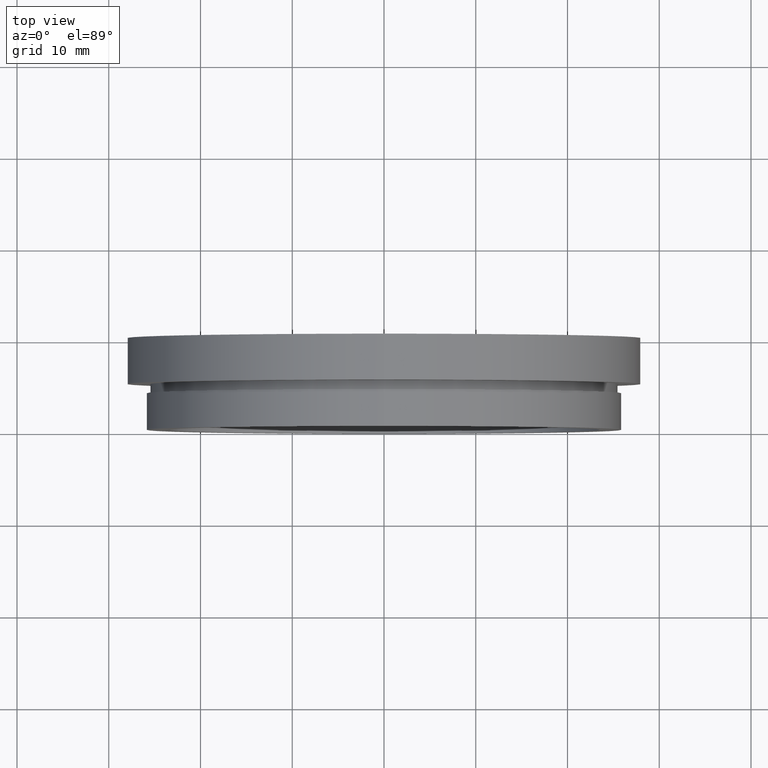
[diagram: clean part render]
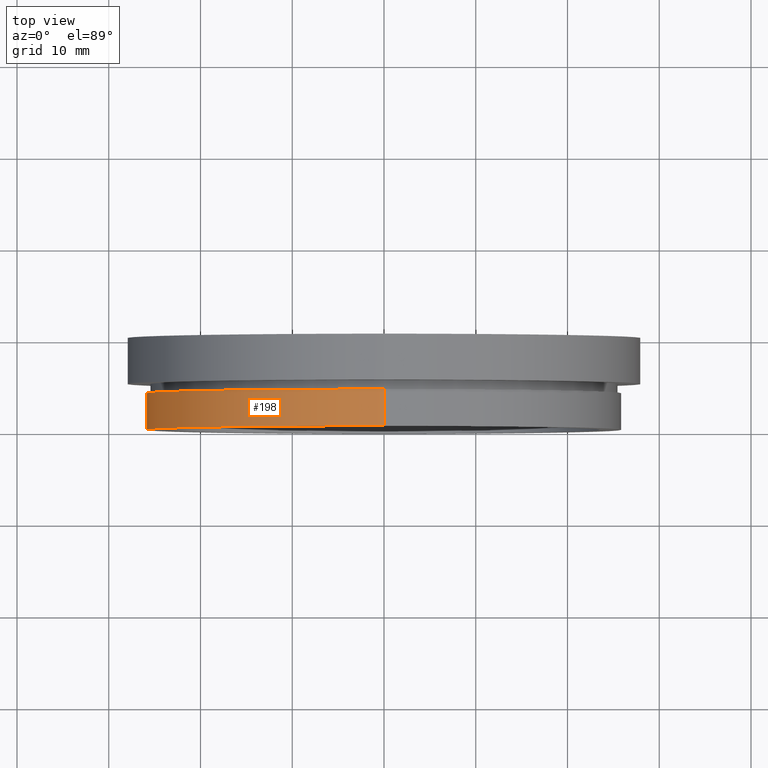
[diagram: same view with one face highlighted and labeled with its STEP entity id]
A machine part, top view. The second image highlights one B-rep face of the part: STEP entity #198.
In plain terms, the highlighted cylindrical surface (partial cylindrical patch) has radius 25.845 mm, axis along (-0, 1, -0).
Its self-contained STEP definition (entity closure, byte-faithful):
#33 = ORIENTED_EDGE ( 'NONE', *, *, #357, .T. ) ;
#43 = EDGE_LOOP ( 'NONE', ( #104, #289, #33, #377 ) ) ;
#104 = ORIENTED_EDGE ( 'NONE', *, *, #181, .F. ) ;
#132 = DIRECTION ( 'NONE',  ( -0.0000000000000000000, 1.000000000000000000, -0.0000000000000000000 ) ) ;
#145 = DIRECTION ( 'NONE',  ( 0.0000000000000000000, 0.0000000000000000000, 1.000000000000000000 ) ) ;
#147 = FACE_OUTER_BOUND ( 'NONE', #43, .T. ) ;
#160 = CARTESIAN_POINT ( 'NONE',  ( 3.165099652396334400E-015, 4.000000000000000000, -25.84499999999999900 ) ) ;
#173 = CARTESIAN_POINT ( 'NONE',  ( 0.0000000000000000000, 13.74468085106383300, 0.0000000000000000000 ) ) ;
#181 = EDGE_CURVE ( 'NONE', #258, #512, #230, .T. ) ;
#195 = CARTESIAN_POINT ( 'NONE',  ( 0.0000000000000000000, 4.000000000000000000, 0.0000000000000000000 ) ) ;
#198 = ADVANCED_FACE ( 'NONE', ( #147 ), #222, .T. ) ;
#208 = EDGE_CURVE ( 'NONE', #258, #312, #469, .T. ) ;
#222 = CYLINDRICAL_SURFACE ( 'NONE', #318, 25.84499999999999900 ) ;
#230 = LINE ( 'NONE', #471, #328 ) ;
#258 = VERTEX_POINT ( 'NONE', #578 ) ;
#262 = DIRECTION ( 'NONE',  ( 0.0000000000000000000, 0.0000000000000000000, 1.000000000000000000 ) ) ;
#264 = VECTOR ( 'NONE', #619, 1000.000000000000000 ) ;
#286 = AXIS2_PLACEMENT_3D ( 'NONE', #306, #586, #262 ) ;
#289 = ORIENTED_EDGE ( 'NONE', *, *, #208, .T. ) ;
#297 = CARTESIAN_POINT ( 'NONE',  ( 0.0000000000000000000, 13.74468085106383300, 25.84499999999999900 ) ) ;
#306 = CARTESIAN_POINT ( 'NONE',  ( 0.0000000000000000000, 0.0000000000000000000, 0.0000000000000000000 ) ) ;
#311 = EDGE_CURVE ( 'NONE', #512, #497, #406, .T. ) ;
#312 = VERTEX_POINT ( 'NONE', #346 ) ;
#318 = AXIS2_PLACEMENT_3D ( 'NONE', #173, #132, #145 ) ;
#328 = VECTOR ( 'NONE', #519, 1000.000000000000000 ) ;
#346 = CARTESIAN_POINT ( 'NONE',  ( 0.0000000000000000000, 0.0000000000000000000, 25.84499999999999900 ) ) ;
#357 = EDGE_CURVE ( 'NONE', #312, #497, #385, .T. ) ;
#377 = ORIENTED_EDGE ( 'NONE', *, *, #311, .F. ) ;
#385 = LINE ( 'NONE', #297, #264 ) ;
#406 = CIRCLE ( 'NONE', #566, 25.84499999999999900 ) ;
#439 = DIRECTION ( 'NONE',  ( 0.0000000000000000000, 0.0000000000000000000, 1.000000000000000000 ) ) ;
#469 = CIRCLE ( 'NONE', #286, 25.84499999999999900 ) ;
#471 = CARTESIAN_POINT ( 'NONE',  ( 3.165099652396334400E-015, 13.74468085106383300, -25.84499999999999900 ) ) ;
#482 = DIRECTION ( 'NONE',  ( -0.0000000000000000000, 1.000000000000000000, -0.0000000000000000000 ) ) ;
#497 = VERTEX_POINT ( 'NONE', #503 ) ;
#503 = CARTESIAN_POINT ( 'NONE',  ( 0.0000000000000000000, 4.000000000000000000, 25.84499999999999900 ) ) ;
#512 = VERTEX_POINT ( 'NONE', #160 ) ;
#519 = DIRECTION ( 'NONE',  ( -0.0000000000000000000, 1.000000000000000000, -0.0000000000000000000 ) ) ;
#566 = AXIS2_PLACEMENT_3D ( 'NONE', #195, #482, #439 ) ;
#578 = CARTESIAN_POINT ( 'NONE',  ( 3.165099652396334400E-015, 0.0000000000000000000, -25.84499999999999900 ) ) ;
#586 = DIRECTION ( 'NONE',  ( -0.0000000000000000000, 1.000000000000000000, -0.0000000000000000000 ) ) ;
#619 = DIRECTION ( 'NONE',  ( -0.0000000000000000000, 1.000000000000000000, -0.0000000000000000000 ) ) ;